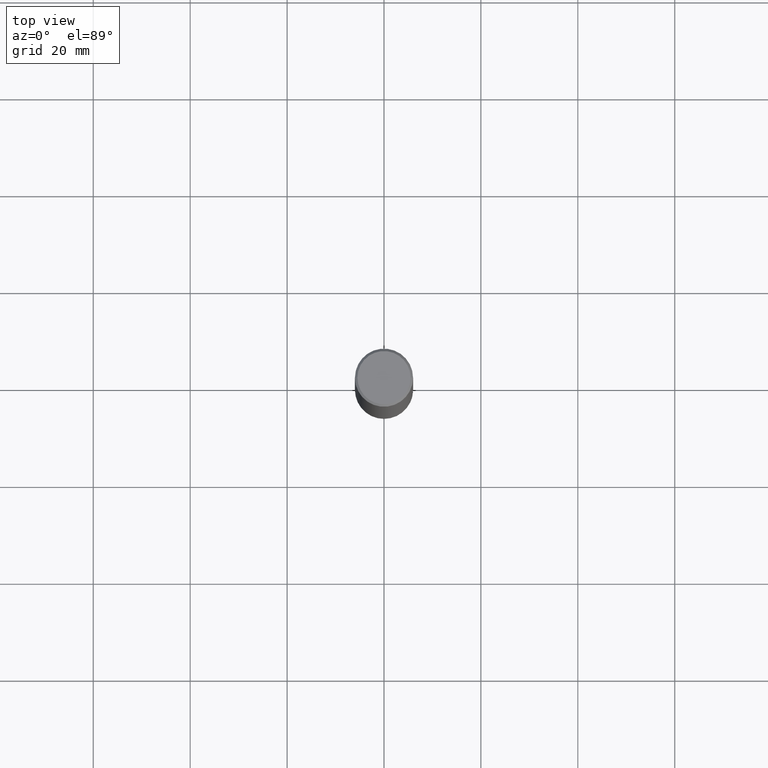
[diagram: clean part render]
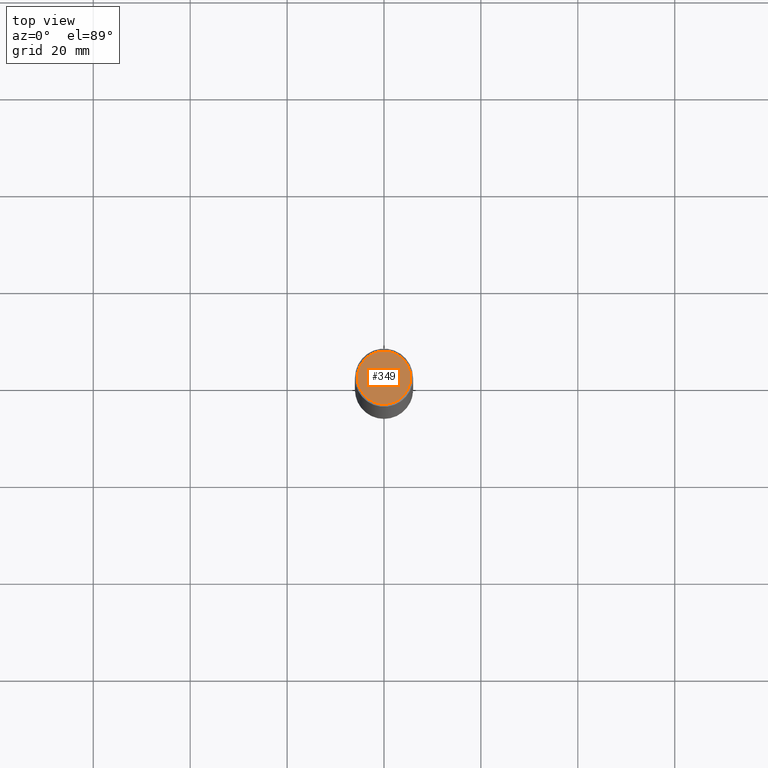
[diagram: same view with one face highlighted and labeled with its STEP entity id]
A machine part, top view. The second image highlights one B-rep face of the part: STEP entity #349.
In plain terms, the highlighted planar face has unit normal (0, -0, -1).
Its self-contained STEP definition (entity closure, byte-faithful):
#11 = AXIS2_PLACEMENT_3D ( 'NONE', #146, #109, #108 ) ;
#43 = PLANE ( 'NONE',  #73 ) ;
#73 = AXIS2_PLACEMENT_3D ( 'NONE', #326, #234, #388 ) ;
#78 = EDGE_LOOP ( 'NONE', ( #226, #179 ) ) ;
#86 = VERTEX_POINT ( 'NONE', #401 ) ;
#89 = VERTEX_POINT ( 'NONE', #403 ) ;
#99 = CIRCLE ( 'NONE', #270, 0.2162000000000000310 ) ;
#108 = DIRECTION ( 'NONE',  ( 1.000000000000000000, -6.982962677686267499E-15, 4.874901889287146132E-29 ) ) ;
#109 = DIRECTION ( 'NONE',  ( -2.445468806185136597E-29, 3.491481338843145583E-15, 1.000000000000000000 ) ) ;
#146 = CARTESIAN_POINT ( 'NONE',  ( 1.878932545803395481E-45, -2.682617706684804906E-31, -7.683322482180740918E-17 ) ) ;
#167 = DIRECTION ( 'NONE',  ( -2.445468806185136597E-29, 3.491481338843145583E-15, 1.000000000000000000 ) ) ;
#179 = ORIENTED_EDGE ( 'NONE', *, *, #360, .T. ) ;
#200 = FACE_OUTER_BOUND ( 'NONE', #78, .T. ) ;
#226 = ORIENTED_EDGE ( 'NONE', *, *, #343, .T. ) ;
#234 = DIRECTION ( 'NONE',  ( 2.438088387897960049E-29, -3.491481338843145188E-15, -1.000000000000000000 ) ) ;
#266 = CARTESIAN_POINT ( 'NONE',  ( 1.878932545803395481E-45, -2.682617706684804906E-31, -7.683322482180740918E-17 ) ) ;
#270 = AXIS2_PLACEMENT_3D ( 'NONE', #266, #167, #353 ) ;
#326 = CARTESIAN_POINT ( 'NONE',  ( 1.509716530915770915E-15, 0.2162000000000000310, -7.932748778687918614E-16 ) ) ;
#343 = EDGE_CURVE ( 'NONE', #86, #89, #396, .T. ) ;
#349 = ADVANCED_FACE ( 'NONE', ( #200 ), #43, .F. ) ;
#353 = DIRECTION ( 'NONE',  ( 1.000000000000000000, -6.982962677686267499E-15, 4.874901889287146132E-29 ) ) ;
#360 = EDGE_CURVE ( 'NONE', #89, #86, #99, .T. ) ;
#388 = DIRECTION ( 'NONE',  ( -1.000000000000000000, 6.982962677686265922E-15, -4.876176775795935793E-29 ) ) ;
#396 = CIRCLE ( 'NONE', #11, 0.2162000000000000310 ) ;
#401 = CARTESIAN_POINT ( 'NONE',  ( -0.2162000000000000310, 1.544631344304202170E-15, -7.683322482181808346E-17 ) ) ;
#403 = CARTESIAN_POINT ( 'NONE',  ( 0.2162000000000000310, -1.586759460484352185E-15, -7.683322482179657467E-17 ) ) ;